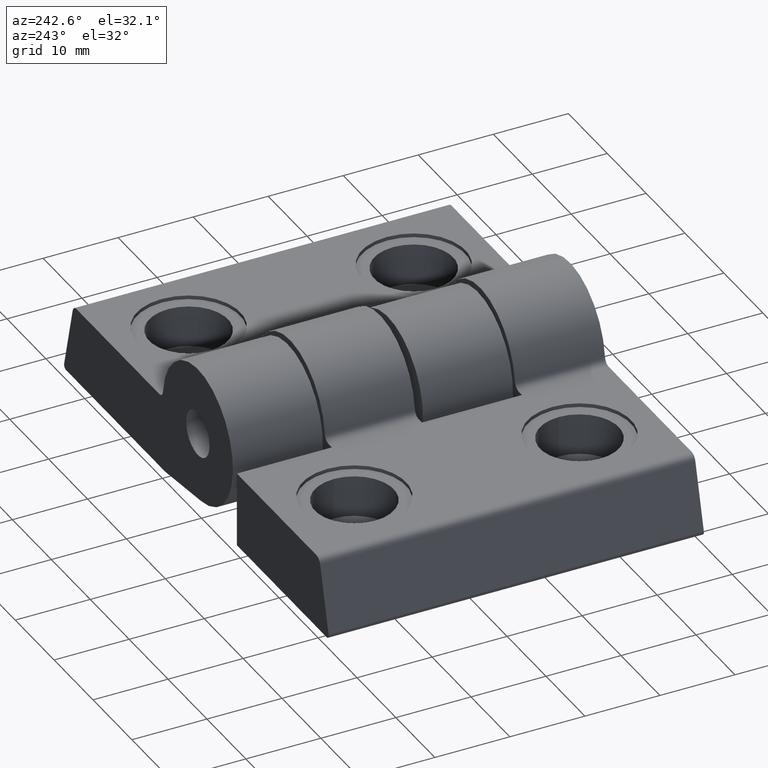
[diagram: clean part render]
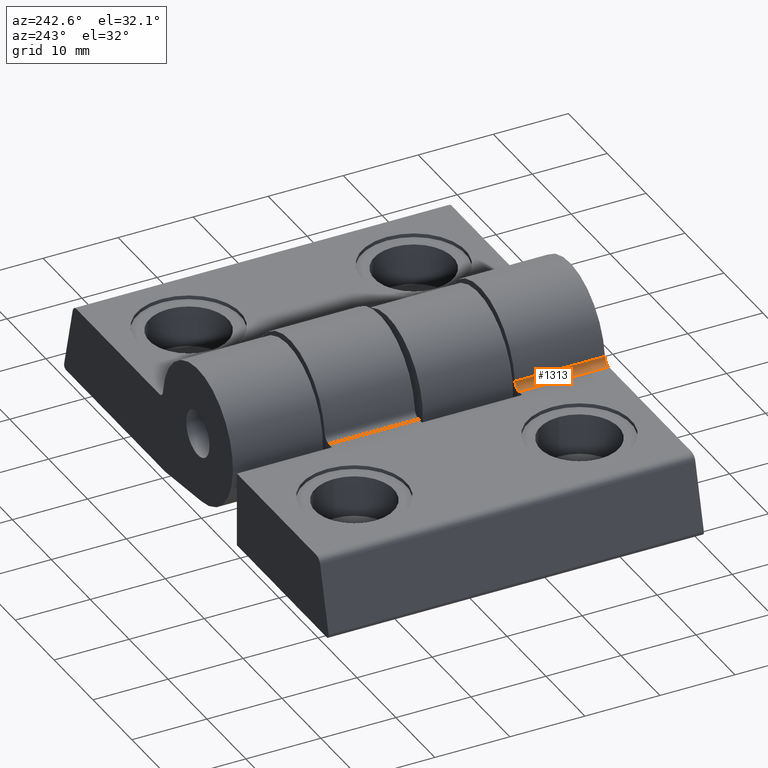
[diagram: same view with one face highlighted and labeled with its STEP entity id]
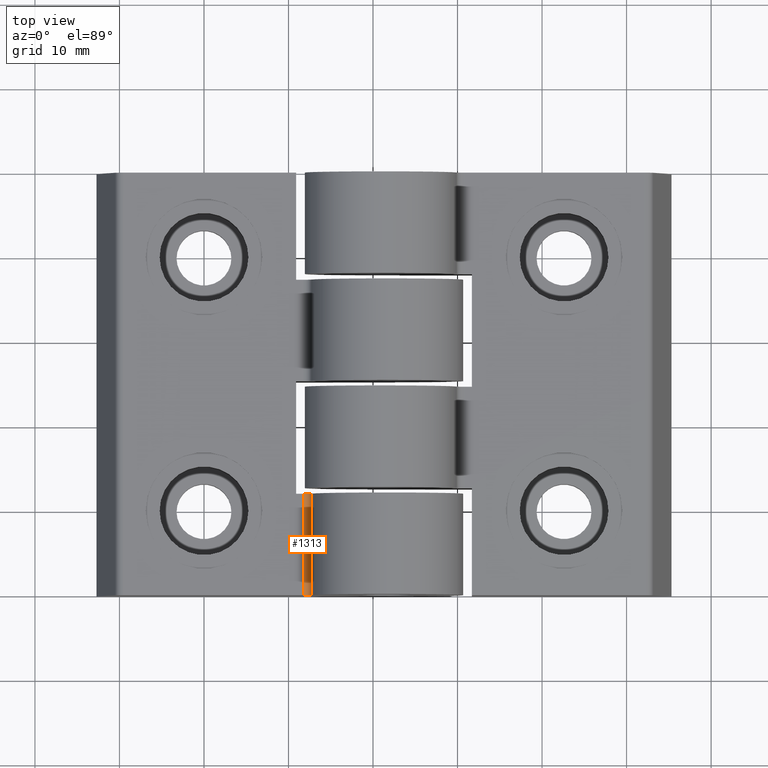
[diagram: same view with one face highlighted and labeled with its STEP entity id]
A machine part, auxiliary view. The second image highlights one B-rep face of the part: STEP entity #1313.
A second angle (top view) of the same face is appended — the face is thin or edge-on in the first view.
In plain terms, the highlighted cylindrical surface (edge-blend (fillet) strip) has radius 1 mm, axis along (-0, -1, 0).
Its self-contained STEP definition (entity closure, byte-faithful):
#1167=CARTESIAN_POINT('',(11.733019789082107,-9.999997779959813,9.999997779961149));
#1168=VERTEX_POINT('',#1167);
#1175=CARTESIAN_POINT('',(11.733019789082107,1.999999555991963,9.999997779961149));
#1176=VERTEX_POINT('',#1175);
#1177=CARTESIAN_POINT('',(11.733019789082107,-9.999997779959813,9.999997779961149));
#1178=DIRECTION('',(0.0,1.0,0.0));
#1179=VECTOR('',#1178,11.999997335951775);
#1180=LINE('',#1177,#1179);
#1181=EDGE_CURVE('',#1168,#1176,#1180,.T.);
#1281=CARTESIAN_POINT('',(11.733019789082107,-9.999997779959813,10.999997496566948));
#1282=DIRECTION('',(-1.224647E-016,-1.0,6.123234E-017));
#1283=DIRECTION('',(-5.551115E-017,-6.123234E-017,-1.0));
#1284=AXIS2_PLACEMENT_3D('',#1281,#1282,#1283);
#1285=CYLINDRICAL_SURFACE('',#1284,0.999999716605787);
#1286=CARTESIAN_POINT('',(12.728006982865679,-9.999997779959813,10.899997909476070));
#1287=VERTEX_POINT('',#1286);
#1288=CARTESIAN_POINT('',(11.733019789082109,-9.999997779959811,10.999997496566948));
#1289=DIRECTION('',(-1.224647E-016,-1.0,6.123234E-017));
#1290=DIRECTION('',(0.994987475757265,-1.279740E-016,-0.099999615430190));
#1291=AXIS2_PLACEMENT_3D('',#1288,#1289,#1290);
#1292=CIRCLE('',#1291,0.999999716605787);
#1293=EDGE_CURVE('',#1168,#1287,#1292,.T.);
#1294=ORIENTED_EDGE('',*,*,#1293,.T.);
#1295=CARTESIAN_POINT('',(12.728006982865679,1.999999555991963,10.899997909476070));
#1296=VERTEX_POINT('',#1295);
#1297=CARTESIAN_POINT('',(12.728006982865679,-9.999997779959813,10.899997909476070));
#1298=DIRECTION('',(0.0,1.0,0.0));
#1299=VECTOR('',#1298,11.999997335951775);
#1300=LINE('',#1297,#1299);
#1301=EDGE_CURVE('',#1287,#1296,#1300,.T.);
#1302=ORIENTED_EDGE('',*,*,#1301,.T.);
#1303=CARTESIAN_POINT('',(11.733019789082107,1.999999555991963,10.999997496566948));
#1304=DIRECTION('',(-1.224647E-016,-1.0,6.123234E-017));
#1305=DIRECTION('',(0.994987475757265,-1.279740E-016,-0.099999615430190));
#1306=AXIS2_PLACEMENT_3D('',#1303,#1304,#1305);
#1307=CIRCLE('',#1306,0.999999716605787);
#1308=EDGE_CURVE('',#1176,#1296,#1307,.T.);
#1309=ORIENTED_EDGE('',*,*,#1308,.F.);
#1310=ORIENTED_EDGE('',*,*,#1181,.F.);
#1311=EDGE_LOOP('',(#1294,#1302,#1309,#1310));
#1312=FACE_OUTER_BOUND('',#1311,.T.);
#1313=ADVANCED_FACE('',(#1312),#1285,.F.);